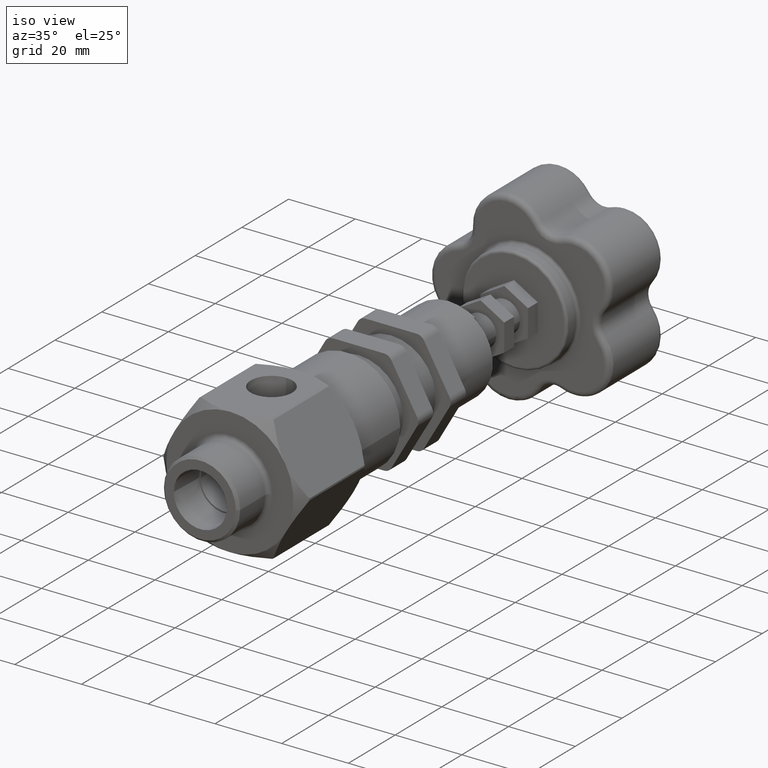
[diagram: clean part render]
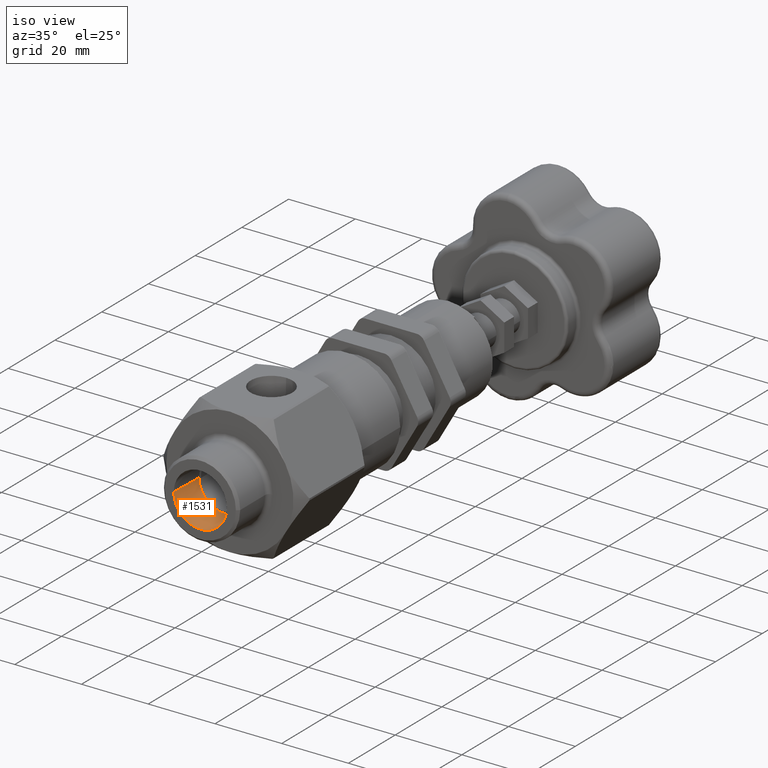
[diagram: same view with one face highlighted and labeled with its STEP entity id]
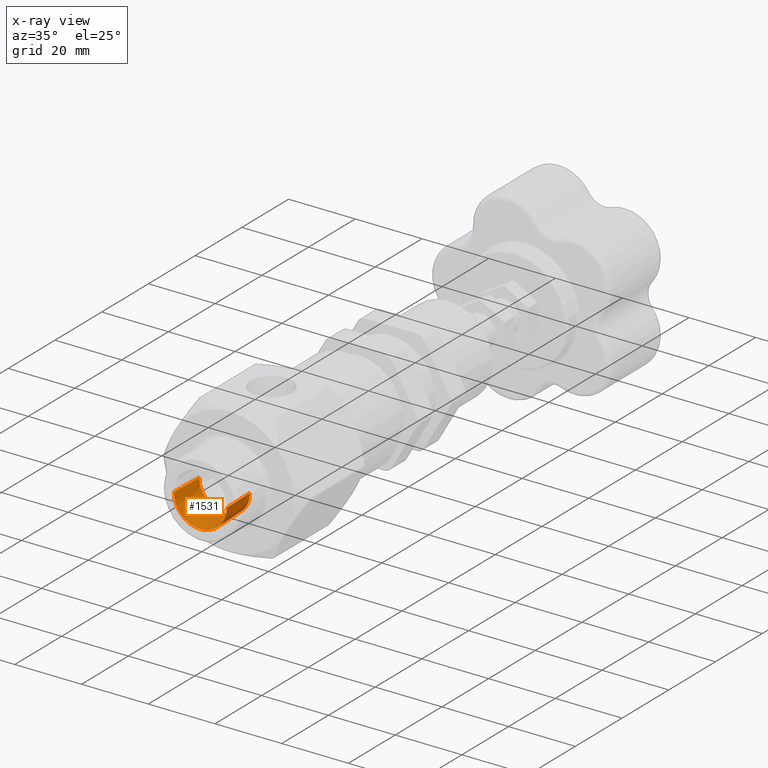
[diagram: x-ray of the same camera — body ghosted, the highlighted face saturated]
A machine part, iso view. The second image highlights one B-rep face of the part: STEP entity #1531.
The next image is the same camera in x-ray: the body ghosted, the highlighted face saturated — about 0% of this face is hidden behind the body in this view.
In plain terms, the highlighted conical surface has half-angle 1.715 deg.
Its self-contained STEP definition (entity closure, byte-faithful):
#54 = DIRECTION ( 'NONE',  ( 0.02992792722492339900, -0.9995520592605567900, 2.561845466620226400E-017 ) ) ;
#353 = ORIENTED_EDGE ( 'NONE', *, *, #8111, .T. ) ;
#631 = ORIENTED_EDGE ( 'NONE', *, *, #1003, .T. ) ;
#1003 = EDGE_CURVE ( 'NONE', #5055, #4414, #6758, .T. ) ;
#1386 = CONICAL_SURFACE ( 'NONE', #2137, 0.3136040000000001000, 0.02993239667170288800 ) ;
#1531 = ADVANCED_FACE ( 'NONE', ( #7241 ), #1386, .F. ) ;
#2020 = DIRECTION ( 'NONE',  ( 1.000000000000000000, 0.0000000000000000000, -1.665334536937733300E-016 ) ) ;
#2043 = CARTESIAN_POINT ( 'NONE',  ( 0.3013280509400823600, -1.524999999999999200, 5.560136308140290900E-016 ) ) ;
#2137 = AXIS2_PLACEMENT_3D ( 'NONE', #2206, #6238, #7124 ) ;
#2206 = CARTESIAN_POINT ( 'NONE',  ( 1.367587542674380800E-016, -1.934999999999998900, 6.187474615231547300E-016 ) ) ;
#2233 = EDGE_LOOP ( 'NONE', ( #5762, #353, #631, #3651 ) ) ;
#2459 = CARTESIAN_POINT ( 'NONE',  ( -0.3013280509400820800, -1.524999999999999200, 7.013282541863925500E-016 ) ) ;
#2467 = DIRECTION ( 'NONE',  ( 5.302876193624532700E-017, -1.000000000000000000, 3.061616997868382400E-017 ) ) ;
#2902 = CIRCLE ( 'NONE', #6830, 0.3013280509400822500 ) ;
#3231 = VERTEX_POINT ( 'NONE', #2459 ) ;
#3299 = EDGE_CURVE ( 'NONE', #3426, #4414, #8050, .T. ) ;
#3426 = VERTEX_POINT ( 'NONE', #2043 ) ;
#3611 = AXIS2_PLACEMENT_3D ( 'NONE', #5034, #3751, #2020 ) ;
#3651 = ORIENTED_EDGE ( 'NONE', *, *, #3299, .F. ) ;
#3751 = DIRECTION ( 'NONE',  ( 5.302876193624532700E-017, -1.000000000000000000, 3.061616997868382400E-017 ) ) ;
#3860 = CARTESIAN_POINT ( 'NONE',  ( 0.3136040000000002200, -1.934999999999998900, 5.665219043109726300E-016 ) ) ;
#4090 = CARTESIAN_POINT ( 'NONE',  ( -0.3136039999999999900, -1.934999999999998900, 7.093784322153174400E-016 ) ) ;
#4414 = VERTEX_POINT ( 'NONE', #5492 ) ;
#4685 = VECTOR ( 'NONE', #54, 39.37007874015748900 ) ;
#5034 = CARTESIAN_POINT ( 'NONE',  ( 1.367587542674380800E-016, -1.934999999999998900, 6.187474615231547300E-016 ) ) ;
#5055 = VERTEX_POINT ( 'NONE', #8041 ) ;
#5492 = CARTESIAN_POINT ( 'NONE',  ( 0.3136040000000002200, -1.934999999999998900, 5.665219043109726300E-016 ) ) ;
#5762 = ORIENTED_EDGE ( 'NONE', *, *, #7009, .F. ) ;
#6012 = VECTOR ( 'NONE', #6640, 39.37007874015748900 ) ;
#6238 = DIRECTION ( 'NONE',  ( 5.302876193624532700E-017, -1.000000000000000000, 3.061616997868382400E-017 ) ) ;
#6270 = CARTESIAN_POINT ( 'NONE',  ( 1.150169618735774800E-016, -1.524999999999999200, 6.061948318318943900E-016 ) ) ;
#6640 = DIRECTION ( 'NONE',  ( -0.02992792722492329500, -0.9995520592605567900, 3.925157085963877900E-017 ) ) ;
#6758 = CIRCLE ( 'NONE', #3611, 0.3136040000000001000 ) ;
#6830 = AXIS2_PLACEMENT_3D ( 'NONE', #6270, #2467, #6929 ) ;
#6929 = DIRECTION ( 'NONE',  ( 1.000000000000000000, 0.0000000000000000000, -1.665334536937735600E-016 ) ) ;
#7009 = EDGE_CURVE ( 'NONE', #3231, #3426, #2902, .T. ) ;
#7124 = DIRECTION ( 'NONE',  ( 1.000000000000000000, 0.0000000000000000000, -1.665334536937733300E-016 ) ) ;
#7241 = FACE_OUTER_BOUND ( 'NONE', #2233, .T. ) ;
#7698 = LINE ( 'NONE', #4090, #6012 ) ;
#8041 = CARTESIAN_POINT ( 'NONE',  ( -0.3136039999999999900, -1.934999999999998900, 7.093784322153174400E-016 ) ) ;
#8050 = LINE ( 'NONE', #3860, #4685 ) ;
#8111 = EDGE_CURVE ( 'NONE', #3231, #5055, #7698, .T. ) ;